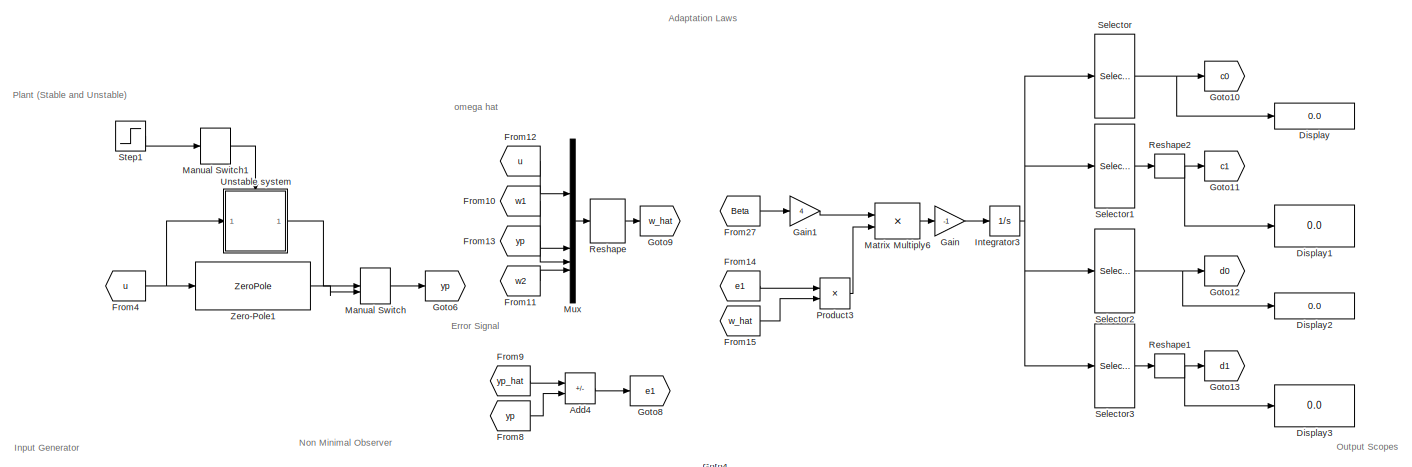
[diagram: root canvas - part 1/3, full width, top band]
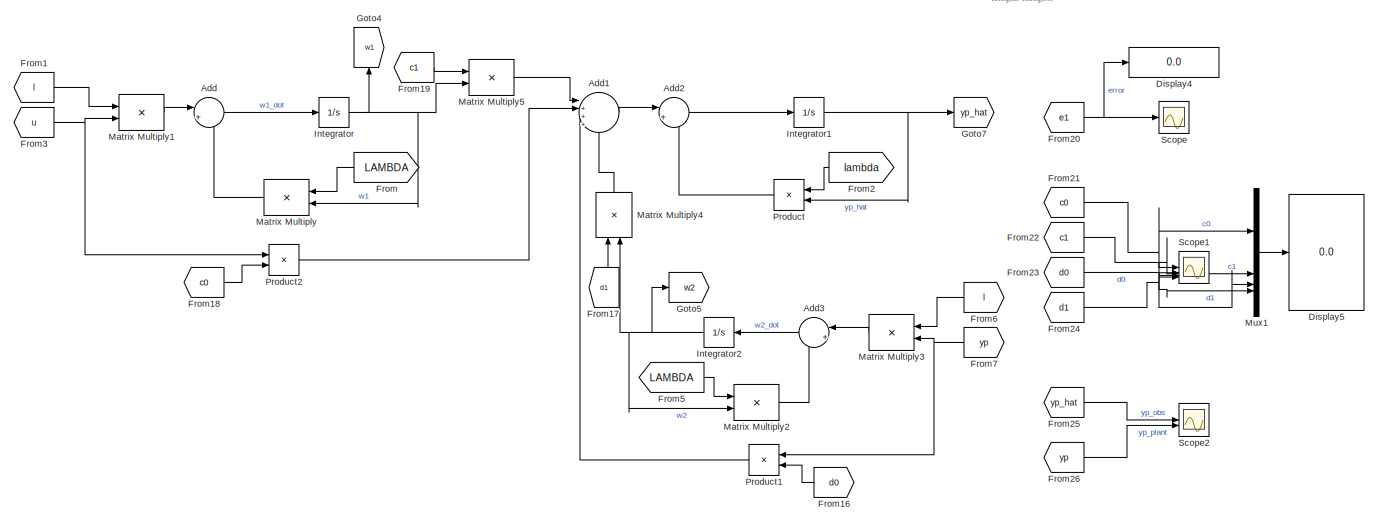
[diagram: root canvas - part 2/3, full width, middle band]
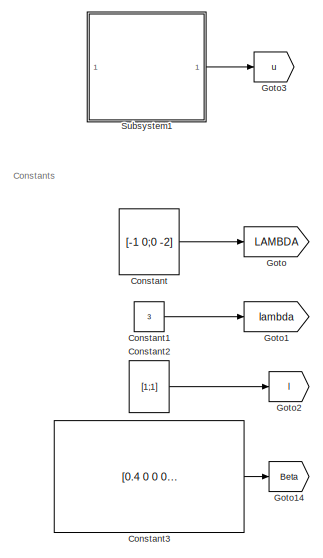
[diagram: root canvas - part 3/3, bottom left region]
MODEL slx_8f26d0568a95
KIND model
CONFIG AbsTol = auto
CONFIG EnableMultiTasking = off
CONFIG FixedStep = 0.0001
CONFIG MaxStep = auto
CONFIG MinStep = auto
CONFIG RelTol = 1e-3
CONFIG SampleTimeConstraint = Unconstrained
CONFIG SolverName = VariableStepAuto
CONFIG StartTime = 0.0
CONFIG StopTime = 30
BLOCK [Sum] Add
  Inputs = |++
BLOCK [Sum] Add1
  Inputs = |++++
BLOCK [Sum] Add2
  Inputs = |+-
BLOCK [Sum] Add3
  Inputs = |++
  NameLocation = top
BLOCK [Sum] Add4
  IconShape = rectangular
  Inputs = +-
BLOCK [Constant] Constant
  Value = [-1 0;0 -2]
  VectorParams1D = off
BLOCK [Constant] Constant1
  Value = 3
BLOCK [Constant] Constant2
  Value = [1;1]
  VectorParams1D = off
BLOCK [Constant] Constant3
  Value = [0.4 0  0 0 0  0  ; 0  100  0 0 0 ,0;   0, 0 , 300,0 0 0   ;   0,0,0,100 0 0;   0,0,0, 0 5000 0  ;  0,0,0 0 0,0.5]
  VectorParams1D = off
BLOCK [Display] Display
  Decimation = 1
BLOCK [Display] Display1
  Decimation = 1
BLOCK [Display] Display2
  Decimation = 1
BLOCK [Display] Display3
  Decimation = 1
BLOCK [Display] Display4
  Decimation = 1
BLOCK [Display] Display5
  Decimation = 1
BLOCK [From] From
  GotoTag = LAMBDA
  NameLocation = top
BLOCK [From] From1
  GotoTag = l
BLOCK [From] From10
  GotoTag = w1
BLOCK [From] From11
  GotoTag = w2
BLOCK [From] From12
  GotoTag = u
BLOCK [From] From13
  GotoTag = yp
BLOCK [From] From14
  GotoTag = e1
BLOCK [From] From15
  GotoTag = w_hat
BLOCK [From] From16
  GotoTag = d0
  NameLocation = top
BLOCK [From] From17
  GotoTag = d1
  NameLocation = right
BLOCK [From] From18
  GotoTag = c0
BLOCK [From] From19
  GotoTag = c1
BLOCK [From] From2
  GotoTag = lambda
  NameLocation = top
BLOCK [From] From20
  GotoTag = e1
BLOCK [From] From21
  GotoTag = c0
BLOCK [From] From22
  GotoTag = c1
BLOCK [From] From23
  GotoTag = d0
BLOCK [From] From24
  GotoTag = d1
BLOCK [From] From25
  GotoTag = yp_hat
BLOCK [From] From26
  GotoTag = yp
BLOCK [From] From27
  GotoTag = Beta
BLOCK [From] From3
  GotoTag = u
BLOCK [From] From4
  GotoTag = u
BLOCK [From] From5
  GotoTag = LAMBDA
BLOCK [From] From6
  GotoTag = l
  NameLocation = top
BLOCK [From] From7
  GotoTag = yp
  NameLocation = top
BLOCK [From] From8
  GotoTag = yp
BLOCK [From] From9
  GotoTag = yp_hat
BLOCK [Gain] Gain
  Gain = -1
BLOCK [Gain] Gain1
  Gain = 4
BLOCK [Goto] Goto
  GotoTag = LAMBDA
BLOCK [Goto] Goto1
  GotoTag = lambda
BLOCK [Goto] Goto10
  GotoTag = c0
BLOCK [Goto] Goto11
  GotoTag = c1
BLOCK [Goto] Goto12
  GotoTag = d0
BLOCK [Goto] Goto13
  GotoTag = d1
BLOCK [Goto] Goto14
  GotoTag = Beta
BLOCK [Goto] Goto2
  GotoTag = l
BLOCK [Goto] Goto3
  GotoTag = u
BLOCK [Goto] Goto4
  GotoTag = w1
  NameLocation = right
BLOCK [Goto] Goto5
  GotoTag = w2
BLOCK [Goto] Goto6
  GotoTag = yp
BLOCK [Goto] Goto7
  GotoTag = yp_hat
BLOCK [Goto] Goto8
  GotoTag = e1
BLOCK [Goto] Goto9
  GotoTag = w_hat
BLOCK [Integrator] Integrator
  InitialCondition = [0;0]
BLOCK [Integrator] Integrator1
BLOCK [Integrator] Integrator2
  InitialCondition = [0;0]
  NameLocation = top
BLOCK [Integrator] Integrator3
BLOCK [ManualSwitch] Manual Switch
  CurrentSetting = 0
BLOCK [ManualSwitch] Manual Switch1
  CurrentSetting = 0
BLOCK [Product] Matrix Multiply
  Multiplication = Matrix(*)
  NameLocation = top
BLOCK [Product] Matrix Multiply1
  Multiplication = Matrix(*)
BLOCK [Product] Matrix Multiply2
  Multiplication = Matrix(*)
BLOCK [Product] Matrix Multiply3
  Multiplication = Matrix(*)
  NameLocation = top
BLOCK [Product] Matrix Multiply4
  Multiplication = Matrix(*)
  NameLocation = right
BLOCK [Product] Matrix Multiply5
  Multiplication = Matrix(*)
BLOCK [Product] Matrix Multiply6
  Multiplication = Matrix(*)
BLOCK [Mux] Mux
  DisplayOption = bar
BLOCK [Mux] Mux1
  DisplayOption = bar
BLOCK [Product] Product
  NameLocation = top
BLOCK [Product] Product1
  NameLocation = top
BLOCK [Product] Product2
BLOCK [Product] Product3
BLOCK [Reshape] Reshape
  OutputDimensionality = Column vector (2-D)
BLOCK [Reshape] Reshape1
  OutputDimensionality = Row vector (2-D)
BLOCK [Reshape] Reshape2
  OutputDimensionality = Row vector (2-D)
BLOCK [Scope] Scope
  Floating = off
  NumInputPorts = 1
  ScopeSpecificationString = Simulink.scopes.TimeScopeBlockCfg('CurrentConfiguration', extmgr.ConfigurationSet(extmgr.Configuration('Core','General UI',true,'FigureColor',[1 1 1]),extmgr.Configuration('Core','Source UI',true),extmgr.Configuration('Sources','WiredSimulink',true,'DataLoggingVariableName','ScopeData1'),extmgr.Configuration('Visuals','Time Domain',true,'SerializedDisplays',{struct('MinYLimReal','-2.83514','MaxYLi...<+2314ch>
BLOCK [Scope] Scope1
  Floating = off
  NumInputPorts = 4
  ScopeSpecificationString = Simulink.scopes.TimeScopeBlockCfg('CurrentConfiguration', extmgr.ConfigurationSet(extmgr.Configuration('Core','General UI',true,'FigureColor',[1 1 1]),extmgr.Configuration('Core','Source UI',true),extmgr.Configuration('Sources','WiredSimulink',true,'DataLoggingVariableName','ScopeData2'),extmgr.Configuration('Visuals','Time Domain',true,'SerializedDisplays',{struct('MinYLimReal','-0.12496','MaxYLi...<+4982ch>
BLOCK [Scope] Scope2
  Floating = off
  NumInputPorts = 2
  ScopeSpecificationString = Simulink.scopes.TimeScopeBlockCfg('CurrentConfiguration', extmgr.ConfigurationSet(extmgr.Configuration('Core','General UI',true,'FigureColor',[1 1 1]),extmgr.Configuration('Core','Source UI',true),extmgr.Configuration('Sources','WiredSimulink',true,'DataLoggingVariableName','ScopeData1'),extmgr.Configuration('Visuals','Time Domain',true,'SerializedDisplays',{struct('MinYLimReal','-17147.58321','Ma...<+2290ch>
BLOCK [Selector] Selector
  IndexOptions = Index vector (dialog)
  Indices = [1]
  InputPortWidth = 6
  OutputSizes = 1
BLOCK [Selector] Selector1
  IndexOptions = Index vector (dialog)
  Indices = [2 3]
  InputPortWidth = 6
  OutputSizes = 1
BLOCK [Selector] Selector2
  IndexOptions = Index vector (dialog)
  Indices = [4]
  InputPortWidth = 6
  OutputSizes = 1
BLOCK [Selector] Selector3
  IndexOptions = Index vector (dialog)
  Indices = [5 6]
  InputPortWidth = 6
  OutputSizes = 1
BLOCK [Step] Step1
  SampleTime = 0
  Time = 0
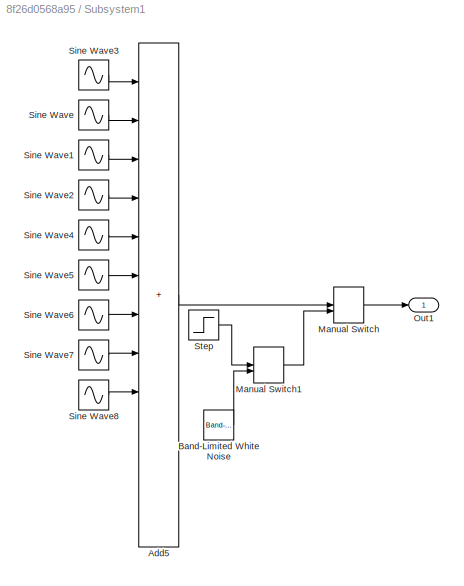
BLOCK [SubSystem] Subsystem1
BLOCK [Sum] Subsystem1/Add5
  IconShape = rectangular
  Inputs = ++++++++++++
BLOCK [Reference] Subsystem1/Band-Limited White Noise  REF=simulink/Sources/Band-Limited
White Noise
  SourceBlock = simulink/Sources/Band-Limited\nWhite Noise
  SourceType = Band-Limited White Noise.
BLOCK [ManualSwitch] Subsystem1/Manual Switch
  CurrentSetting = 0
BLOCK [ManualSwitch] Subsystem1/Manual Switch1
  CurrentSetting = 0
BLOCK [Outport] Subsystem1/Out1
BLOCK [Sin] Subsystem1/Sine Wave
  Amplitude = 7
  SampleTime = 0
BLOCK [Sin] Subsystem1/Sine Wave1
  Amplitude = 5
  Frequency = 2
  SampleTime = 0
BLOCK [Sin] Subsystem1/Sine Wave2
  Frequency = 3
  SampleTime = 0
BLOCK [Sin] Subsystem1/Sine Wave3
  Amplitude = 10
  Frequency = 200
  SampleTime = 0
BLOCK [Sin] Subsystem1/Sine Wave4
  Amplitude = 2
  Frequency = 17
  SampleTime = 0
BLOCK [Sin] Subsystem1/Sine Wave5
  Amplitude = 5
  Frequency = 12
  SampleTime = 0
BLOCK [Sin] Subsystem1/Sine Wave6
  Amplitude = 6
  Frequency = 44
  SampleTime = 0
BLOCK [Sin] Subsystem1/Sine Wave7
  Amplitude = 5
  Frequency = 65
  SampleTime = 0
BLOCK [Sin] Subsystem1/Sine Wave8
  Amplitude = 3
  Frequency = 0.1
  SampleTime = 0
BLOCK [Step] Subsystem1/Step
  SampleTime = 0
  Time = 0
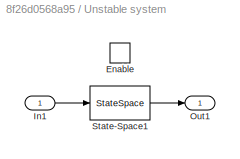
BLOCK [SubSystem] Unstable system
BLOCK [EnablePort] Unstable system/Enable
BLOCK [Inport] Unstable system/In1
BLOCK [Outport] Unstable system/Out1
BLOCK [StateSpace] Unstable system/State-Space1
  A = [0,0,24;1 0 10; 0 1 -3]
  B = [1.5 ;2.5 ;1]
  C = [0 0 1]
  D = 0
  InitialCondition = [1 , 1.5,2]
BLOCK [ZeroPole] Zero-Pole1
  Gain = 1/2.5
  Poles = [0 0]
  Zeros = []
ANNOTATION (root): Adaptation Laws
ANNOTATION (root): Constants
ANNOTATION (root): Error Signal
ANNOTATION (root): Input Generator
ANNOTATION (root): Non Minimal Observer
ANNOTATION (root): Output Scopes
ANNOTATION (root): Plant (Stable and Unstable)
ANNOTATION (root): omega hat
LINE Add1:1 -> Add2:1
LINE Add2:1 -> Integrator1:1
LINE Add3:1 -> Integrator2:1
LINE Add4:1 -> Goto8:1
LINE Add:1 -> Integrator:1
LINE Constant1:1 -> Goto1:1
LINE Constant2:1 -> Goto2:1
LINE Constant3:1 -> Goto14:1
LINE Constant:1 -> Goto:1
LINE From10:1 -> Mux:2
LINE From11:1 -> Mux:4
LINE From12:1 -> Mux:1
LINE From13:1 -> Mux:3
LINE From14:1 -> Product3:1
LINE From15:1 -> Product3:2
LINE From16:1 -> Product1:2
LINE From17:1 -> Matrix Multiply4:1
LINE From18:1 -> Product2:2
LINE From19:1 -> Matrix Multiply5:1
LINE From1:1 -> Matrix Multiply1:1
NET From20:1 -> Display4:1, Scope:1
NET From21:1 -> Mux1:1, Scope1:1
NET From22:1 -> Mux1:2, Scope1:2
NET From23:1 -> Mux1:3, Scope1:3
NET From24:1 -> Mux1:4, Scope1:4
LINE From25:1 -> Scope2:1
LINE From26:1 -> Scope2:2
LINE From27:1 -> Gain1:1
LINE From2:1 -> Product:1
NET From3:1 -> Matrix Multiply1:2, Product2:1
NET From4:1 -> Unstable system:1, Zero-Pole1:1
LINE From5:1 -> Matrix Multiply2:1
LINE From6:1 -> Matrix Multiply3:1
NET From7:1 -> Matrix Multiply3:2, Product1:1
LINE From8:1 -> Add4:2
LINE From9:1 -> Add4:1
LINE From:1 -> Matrix Multiply:1
LINE Gain1:1 -> Matrix Multiply6:1
LINE Gain:1 -> Integrator3:1
NET Integrator1:1 -> Goto7:1, Product:2
NET Integrator2:1 -> Goto5:1, Matrix Multiply2:2, Matrix Multiply4:2
NET Integrator3:1 -> Selector1:1, Selector2:1, Selector3:1, Selector:1
NET Integrator:1 -> Goto4:1, Matrix Multiply5:2, Matrix Multiply:2
LINE Manual Switch1:1 -> Unstable system:enable
LINE Manual Switch:1 -> Goto6:1
LINE Matrix Multiply1:1 -> Add:1
LINE Matrix Multiply2:1 -> Add3:2
LINE Matrix Multiply3:1 -> Add3:1
LINE Matrix Multiply4:1 -> Add1:4
LINE Matrix Multiply5:1 -> Add1:1
LINE Matrix Multiply6:1 -> Gain:1
LINE Matrix Multiply:1 -> Add:2
LINE Mux1:1 -> Display5:1
LINE Mux:1 -> Reshape:1
LINE Product1:1 -> Add1:3
LINE Product2:1 -> Add1:2
LINE Product3:1 -> Matrix Multiply6:2
LINE Product:1 -> Add2:2
NET Reshape1:1 -> Display3:1, Goto13:1
NET Reshape2:1 -> Display1:1, Goto11:1
LINE Reshape:1 -> Goto9:1
LINE Selector1:1 -> Reshape2:1
NET Selector2:1 -> Display2:1, Goto12:1
LINE Selector3:1 -> Reshape1:1
NET Selector:1 -> Display:1, Goto10:1
LINE Step1:1 -> Manual Switch1:1
LINE Subsystem1/Add5:1 -> Subsystem1/Manual Switch:1
LINE Subsystem1/Band-Limited White Noise:1 -> Subsystem1/Manual Switch1:2
LINE Subsystem1/Manual Switch1:1 -> Subsystem1/Manual Switch:2
LINE Subsystem1/Manual Switch:1 -> Subsystem1/Out1:1
LINE Subsystem1/Sine Wave1:1 -> Subsystem1/Add5:3
LINE Subsystem1/Sine Wave2:1 -> Subsystem1/Add5:4
LINE Subsystem1/Sine Wave3:1 -> Subsystem1/Add5:1
LINE Subsystem1/Sine Wave4:1 -> Subsystem1/Add5:5
LINE Subsystem1/Sine Wave5:1 -> Subsystem1/Add5:6
LINE Subsystem1/Sine Wave6:1 -> Subsystem1/Add5:7
LINE Subsystem1/Sine Wave7:1 -> Subsystem1/Add5:8
LINE Subsystem1/Sine Wave8:1 -> Subsystem1/Add5:9
LINE Subsystem1/Sine Wave:1 -> Subsystem1/Add5:2
LINE Subsystem1/Step:1 -> Subsystem1/Manual Switch1:1
LINE Subsystem1:1 -> Goto3:1
LINE Unstable system/In1:1 -> Unstable system/State-Space1:1
LINE Unstable system/State-Space1:1 -> Unstable system/Out1:1
LINE Unstable system:1 -> Manual Switch:1
LINE Zero-Pole1:1 -> Manual Switch:2
note: NET lines group one-source signal fan-out (src -> all destinations, sorted); 1:1 wires keep LINE
